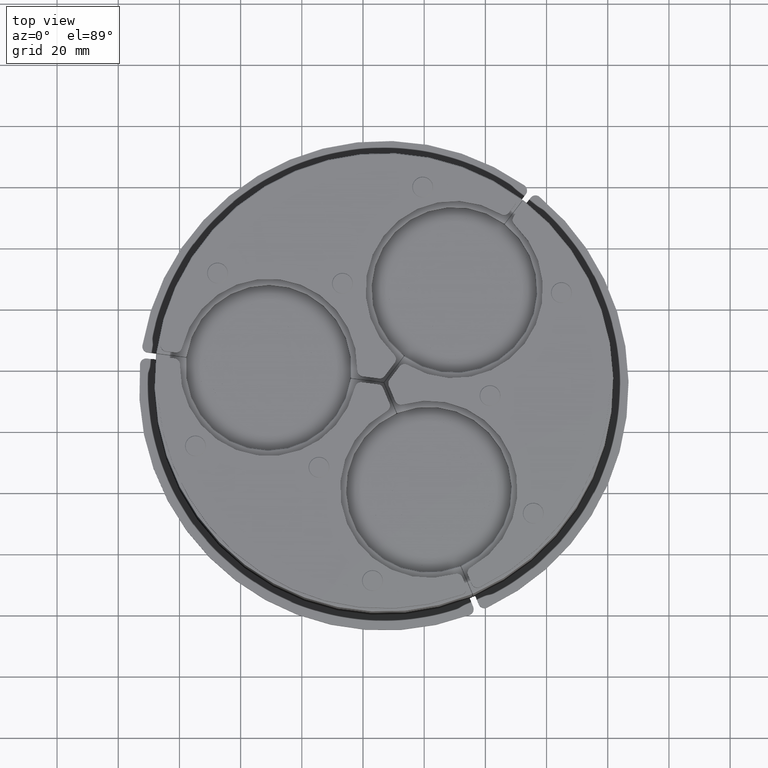
[diagram: clean part render]
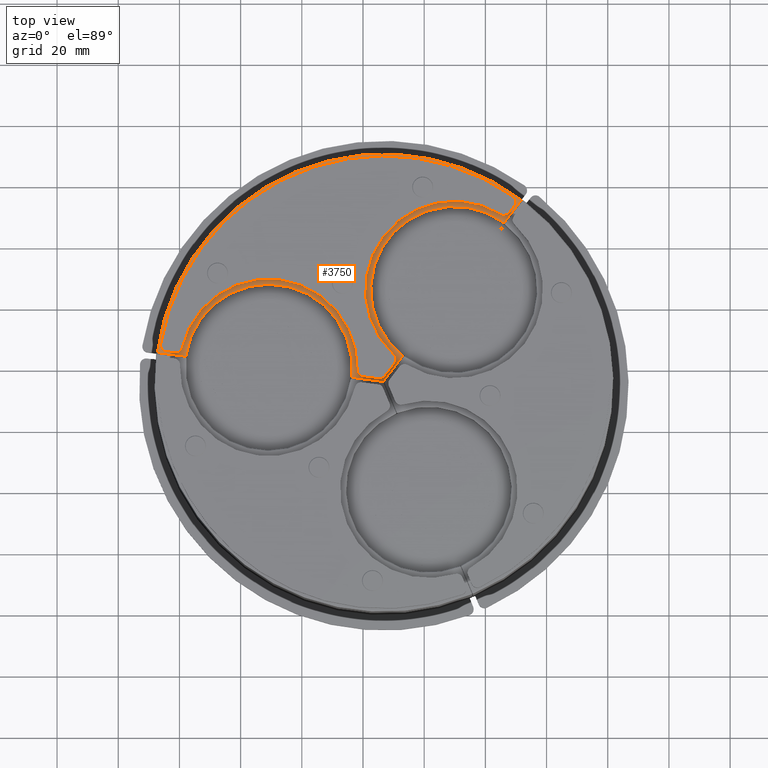
[diagram: same view with one face highlighted and labeled with its STEP entity id]
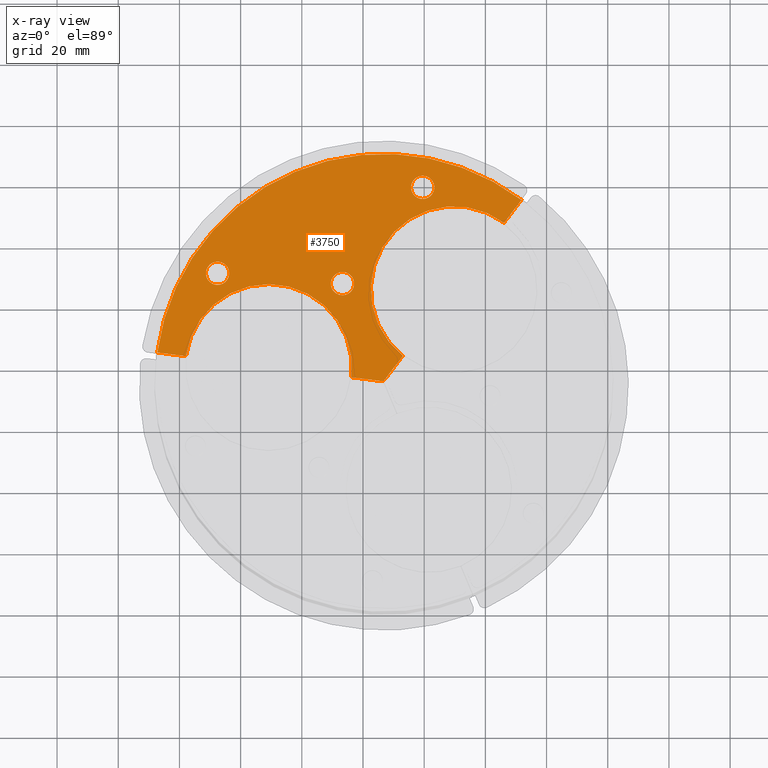
[diagram: x-ray of the same camera — body ghosted, the highlighted face saturated]
A machine part, top view. The second image highlights one B-rep face of the part: STEP entity #3750.
The next image is the same camera in x-ray: the body ghosted, the highlighted face saturated — about 0% of this face is hidden behind the body in this view.
In plain terms, the highlighted planar face has unit normal (0, 0, 1).
Its self-contained STEP definition (entity closure, byte-faithful):
#3647=CARTESIAN_POINT('',(8.3341707933681,64.841663266888588,60.0));
#3648=VERTEX_POINT('',#3647);
#3649=CARTESIAN_POINT('',(4.534170793368101,64.841663266888588,60.0));
#3650=DIRECTION('',(0.0,0.0,1.0));
#3651=DIRECTION('',(-1.0,0.0,0.0));
#3652=AXIS2_PLACEMENT_3D('',#3649,#3650,#3651);
#3653=CIRCLE('',#3652,3.8);
#3654=EDGE_CURVE('',#3648,#3648,#3653,.T.);
#3659=CARTESIAN_POINT('',(-21.18213517137211,36.68853432960816,60.0));
#3660=DIRECTION('',(0.0,0.0,1.0));
#3661=DIRECTION('',(1.0,0.0,0.0));
#3662=AXIS2_PLACEMENT_3D('',#3659,#3660,#3661);
#3663=PLANE('',#3662);
#3664=CARTESIAN_POINT('',(-74.699397587932395,0.3,60.0));
#3665=VERTEX_POINT('',#3664);
#3666=CARTESIAN_POINT('',(37.089891172830846,64.841575958543501,60.0));
#3667=VERTEX_POINT('',#3666);
#3668=CARTESIAN_POINT('',(0.0,0.0,60.0));
#3669=DIRECTION('',(0.0,0.0,-1.0));
#3670=DIRECTION('',(-0.5,0.866025403784439,0.0));
#3671=AXIS2_PLACEMENT_3D('',#3668,#3669,#3670);
#3672=CIRCLE('',#3671,74.700000000000003);
#3673=EDGE_CURVE('',#3665,#3667,#3672,.T.);
#3674=ORIENTED_EDGE('',*,*,#3673,.F.);
#3675=CARTESIAN_POINT('',(-65.298351598585583,0.3,60.0));
#3676=VERTEX_POINT('',#3675);
#3677=CARTESIAN_POINT('',(-65.298351598585583,0.299999999999999,60.0));
#3678=DIRECTION('',(-1.0,0.0,0.0));
#3679=VECTOR('',#3678,9.401045989346812);
#3680=LINE('',#3677,#3679);
#3681=EDGE_CURVE('',#3676,#3665,#3680,.T.);
#3682=ORIENTED_EDGE('',*,*,#3681,.F.);
#3683=CARTESIAN_POINT('',(-10.701648401414424,0.299999999999994,60.0));
#3684=VERTEX_POINT('',#3683);
#3685=CARTESIAN_POINT('',(-38.0,-4.653658E-015,60.0));
#3686=DIRECTION('',(0.0,0.0,1.0));
#3687=DIRECTION('',(0.0,1.0,0.0));
#3688=AXIS2_PLACEMENT_3D('',#3685,#3686,#3687);
#3689=CIRCLE('',#3688,27.300000000000001);
#3690=EDGE_CURVE('',#3684,#3676,#3689,.T.);
#3691=ORIENTED_EDGE('',*,*,#3690,.F.);
#3692=CARTESIAN_POINT('',(-0.173205080756885,0.299999999999998,60.0));
#3693=VERTEX_POINT('',#3692);
#3694=CARTESIAN_POINT('',(-0.173205080756887,0.299999999999998,60.0));
#3695=DIRECTION('',(-1.0,0.0,0.0));
#3696=VECTOR('',#3695,10.528443320657537);
#3697=LINE('',#3694,#3696);
#3698=EDGE_CURVE('',#3693,#3684,#3697,.T.);
#3699=ORIENTED_EDGE('',*,*,#3698,.F.);
#3700=CARTESIAN_POINT('',(5.091016579571875,9.417899377994017,60.0));
#3701=VERTEX_POINT('',#3700);
#3702=CARTESIAN_POINT('',(5.091016579571877,9.417899377994015,60.0));
#3703=DIRECTION('',(-0.5,-0.866025403784439,0.0));
#3704=VECTOR('',#3703,10.528443320657532);
#3705=LINE('',#3702,#3704);
#3706=EDGE_CURVE('',#3701,#3693,#3705,.T.);
#3707=ORIENTED_EDGE('',*,*,#3706,.F.);
#3708=CARTESIAN_POINT('',(32.389368178157433,56.700031309623341,60.0));
#3709=VERTEX_POINT('',#3708);
#3710=CARTESIAN_POINT('',(18.999999999999986,32.908965343808674,60.0));
#3711=DIRECTION('',(0.0,0.0,1.0));
#3712=DIRECTION('',(-0.866025403784439,0.5,0.0));
#3713=AXIS2_PLACEMENT_3D('',#3710,#3711,#3712);
#3714=CIRCLE('',#3713,27.299999999999997);
#3715=EDGE_CURVE('',#3709,#3701,#3714,.T.);
#3716=ORIENTED_EDGE('',*,*,#3715,.F.);
#3717=CARTESIAN_POINT('',(37.089891172830839,64.841575958543501,60.0));
#3718=DIRECTION('',(-0.499999999999999,-0.866025403784439,0.0));
#3719=VECTOR('',#3718,9.401045989346827);
#3720=LINE('',#3717,#3719);
#3721=EDGE_CURVE('',#3667,#3709,#3720,.T.);
#3722=ORIENTED_EDGE('',*,*,#3721,.F.);
#3723=EDGE_LOOP('',(#3674,#3682,#3691,#3699,#3707,#3716,#3722));
#3724=FACE_OUTER_BOUND('',#3723,.T.);
#3725=CARTESIAN_POINT('',(-13.699999999999992,30.310889132455362,60.0));
#3726=VERTEX_POINT('',#3725);
#3727=CARTESIAN_POINT('',(-17.499999999999993,30.310889132455362,60.0));
#3728=DIRECTION('',(0.0,0.0,1.0));
#3729=DIRECTION('',(-1.0,0.0,0.0));
#3730=AXIS2_PLACEMENT_3D('',#3727,#3728,#3729);
#3731=CIRCLE('',#3730,3.8);
#3732=EDGE_CURVE('',#3726,#3726,#3731,.T.);
#3733=ORIENTED_EDGE('',*,*,#3732,.F.);
#3734=EDGE_LOOP('',(#3733));
#3735=FACE_BOUND('',#3734,.T.);
#3736=CARTESIAN_POINT('',(-54.62161300944588,28.494124541290006,60.0));
#3737=VERTEX_POINT('',#3736);
#3738=CARTESIAN_POINT('',(-58.421613009445885,28.494124541290006,60.0));
#3739=DIRECTION('',(0.0,0.0,1.0));
#3740=DIRECTION('',(-1.0,0.0,0.0));
#3741=AXIS2_PLACEMENT_3D('',#3738,#3739,#3740);
#3742=CIRCLE('',#3741,3.8);
#3743=EDGE_CURVE('',#3737,#3737,#3742,.T.);
#3744=ORIENTED_EDGE('',*,*,#3743,.F.);
#3745=EDGE_LOOP('',(#3744));
#3746=FACE_BOUND('',#3745,.T.);
#3747=ORIENTED_EDGE('',*,*,#3654,.F.);
#3748=EDGE_LOOP('',(#3747));
#3749=FACE_BOUND('',#3748,.T.);
#3750=ADVANCED_FACE('',(#3724,#3735,#3746,#3749),#3663,.T.);